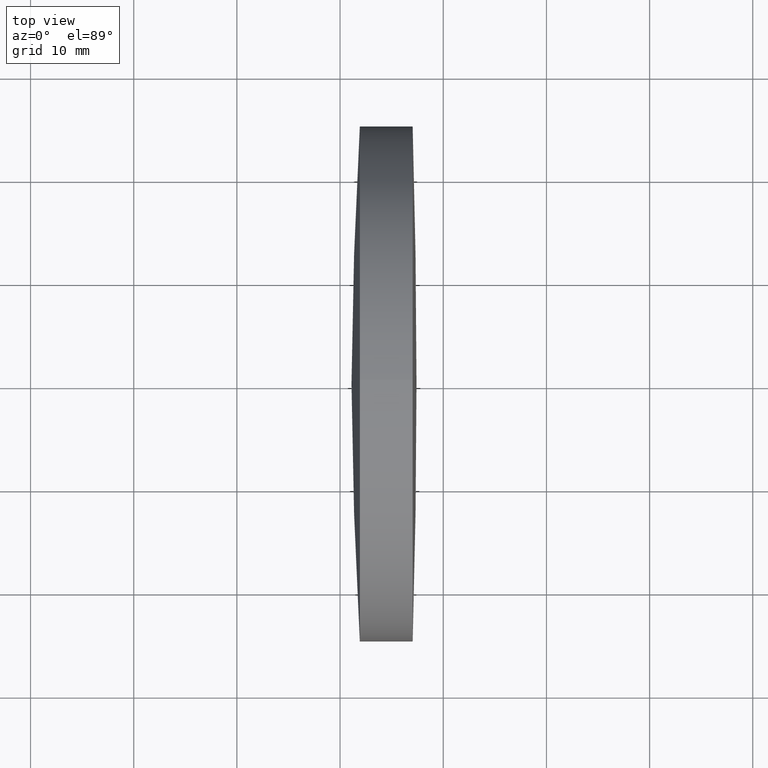
[diagram: clean part render]
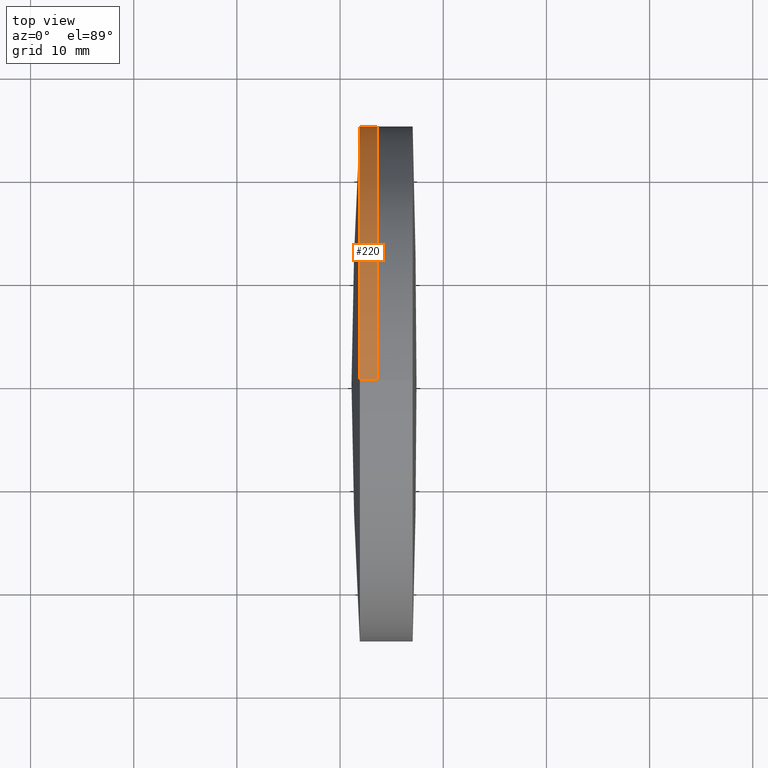
[diagram: same view with one face highlighted and labeled with its STEP entity id]
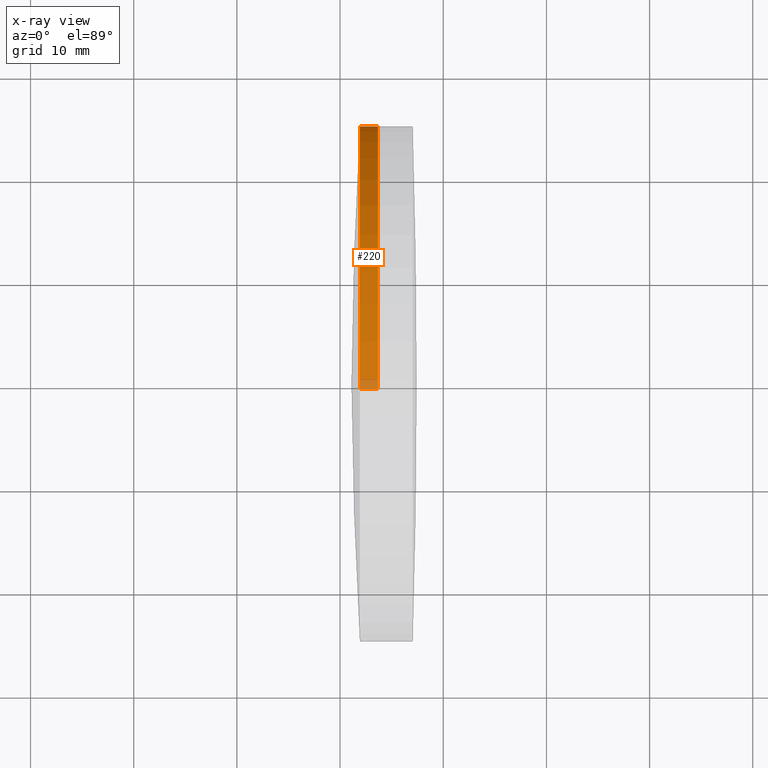
[diagram: x-ray of the same camera — body ghosted, the highlighted face saturated]
A machine part, top view. The second image highlights one B-rep face of the part: STEP entity #220.
The next image is the same camera in x-ray: the body ghosted, the highlighted face saturated — about 3% of this face is hidden behind the body in this view.
In plain terms, the highlighted cylindrical surface (partial cylindrical patch) has radius 25 mm, axis along (-1, -0, -0).
Its self-contained STEP definition (entity closure, byte-faithful):
#6 = DIRECTION ( 'NONE',  ( -1.000000000000000000, -0.0000000000000000000, -0.0000000000000000000 ) ) ;
#9 = VECTOR ( 'NONE', #6, 1000.000000000000000 ) ;
#11 = CARTESIAN_POINT ( 'NONE',  ( 291.9150182122907000, 3.061616997868380700E-015, -25.00000000000035900 ) ) ;
#15 = CARTESIAN_POINT ( 'NONE',  ( 293.6613078278429600, 3.061616997868389000E-015, -25.00000000000005000 ) ) ;
#20 = CYLINDRICAL_SURFACE ( 'NONE', #282, 25.00000000000005000 ) ;
#23 = ORIENTED_EDGE ( 'NONE', *, *, #157, .F. ) ;
#24 = EDGE_LOOP ( 'NONE', ( #217, #75, #70, #23 ) ) ;
#28 = LINE ( 'NONE', #209, #122 ) ;
#46 = CARTESIAN_POINT ( 'NONE',  ( 293.6613078278429600, 0.0000000000000000000, 0.0000000000000000000 ) ) ;
#58 = CARTESIAN_POINT ( 'NONE',  ( 124.5233095260452400, 0.0000000000000000000, 25.00000000000005000 ) ) ;
#65 = AXIS2_PLACEMENT_3D ( 'NONE', #46, #163, #253 ) ;
#70 = ORIENTED_EDGE ( 'NONE', *, *, #343, .F. ) ;
#75 = ORIENTED_EDGE ( 'NONE', *, *, #165, .T. ) ;
#79 = CARTESIAN_POINT ( 'NONE',  ( 293.6613078278429600, 0.0000000000000000000, 25.00000000000005000 ) ) ;
#118 = CARTESIAN_POINT ( 'NONE',  ( 291.9150182122907000, 0.0000000000000000000, 0.0000000000000000000 ) ) ;
#122 = VECTOR ( 'NONE', #289, 1000.000000000000000 ) ;
#125 = CARTESIAN_POINT ( 'NONE',  ( 124.5233095260452400, 0.0000000000000000000, 0.0000000000000000000 ) ) ;
#137 = DIRECTION ( 'NONE',  ( -1.000000000000000000, -0.0000000000000000000, -0.0000000000000000000 ) ) ;
#146 = EDGE_CURVE ( 'NONE', #258, #159, #249, .T. ) ;
#157 = EDGE_CURVE ( 'NONE', #258, #230, #271, .T. ) ;
#159 = VERTEX_POINT ( 'NONE', #15 ) ;
#163 = DIRECTION ( 'NONE',  ( -1.000000000000000000, -0.0000000000000000000, -0.0000000000000000000 ) ) ;
#164 = CARTESIAN_POINT ( 'NONE',  ( 291.9150182122907000, 0.0000000000000000000, 24.99999999999998600 ) ) ;
#165 = EDGE_CURVE ( 'NONE', #159, #280, #28, .T. ) ;
#209 = CARTESIAN_POINT ( 'NONE',  ( 124.5233095260452400, 3.061616997868389000E-015, -25.00000000000005000 ) ) ;
#213 = AXIS2_PLACEMENT_3D ( 'NONE', #118, #338, #342 ) ;
#217 = ORIENTED_EDGE ( 'NONE', *, *, #146, .T. ) ;
#220 = ADVANCED_FACE ( 'NONE', ( #325 ), #20, .T. ) ;
#222 = CIRCLE ( 'NONE', #213, 25.00000000000005300 ) ;
#230 = VERTEX_POINT ( 'NONE', #164 ) ;
#249 = CIRCLE ( 'NONE', #65, 25.00000000000005000 ) ;
#253 = DIRECTION ( 'NONE',  ( 0.0000000000000000000, 0.0000000000000000000, 1.000000000000000000 ) ) ;
#258 = VERTEX_POINT ( 'NONE', #79 ) ;
#271 = LINE ( 'NONE', #58, #9 ) ;
#280 = VERTEX_POINT ( 'NONE', #11 ) ;
#282 = AXIS2_PLACEMENT_3D ( 'NONE', #125, #137, #290 ) ;
#289 = DIRECTION ( 'NONE',  ( -1.000000000000000000, -0.0000000000000000000, -0.0000000000000000000 ) ) ;
#290 = DIRECTION ( 'NONE',  ( 0.0000000000000000000, 0.0000000000000000000, 1.000000000000000000 ) ) ;
#325 = FACE_OUTER_BOUND ( 'NONE', #24, .T. ) ;
#338 = DIRECTION ( 'NONE',  ( -1.000000000000000000, -0.0000000000000000000, -0.0000000000000000000 ) ) ;
#342 = DIRECTION ( 'NONE',  ( 0.0000000000000000000, 0.0000000000000000000, 1.000000000000000000 ) ) ;
#343 = EDGE_CURVE ( 'NONE', #230, #280, #222, .T. ) ;